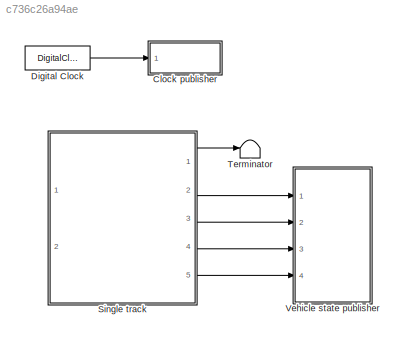
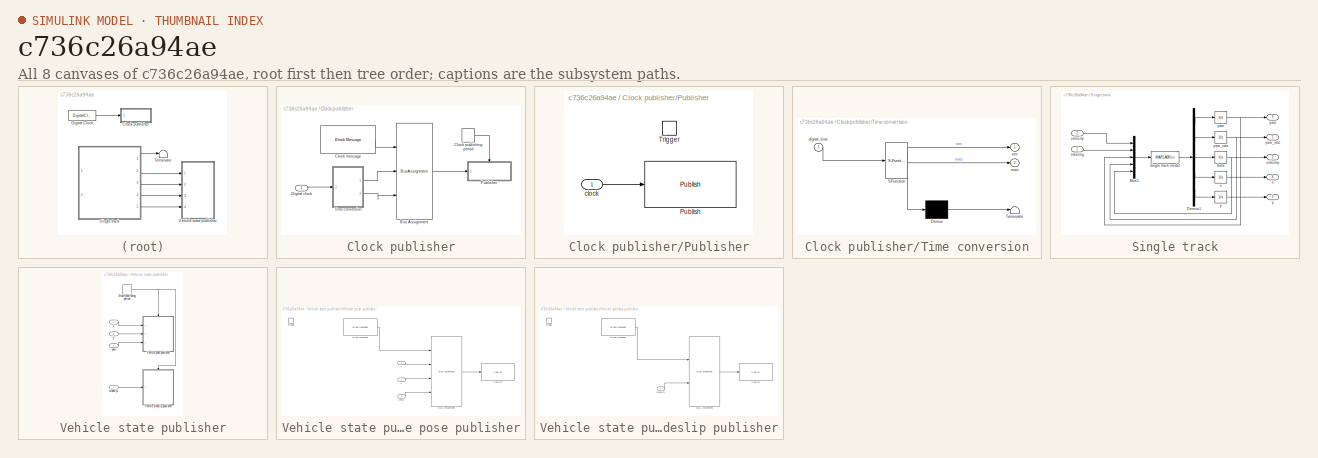
[diagram: thumbnail index - all 8 canvases of the model, root first then tree order]
MODEL slx_c736c26a94ae
KIND model
CONFIG AbsTol = auto
CONFIG EnableMultiTasking = off
CONFIG FixedStep = auto
CONFIG MaxStep = auto
CONFIG MinStep = auto
CONFIG RelTol = 1e-3
CONFIG SampleTimeConstraint = Unconstrained
CONFIG Solver = VariableStepAuto
CONFIG SolverName = VariableStepAuto
CONFIG StartTime = 0.0
CONFIG StopTime = 10.0
BLOCK [SubSystem] Clock publisher
  Ports = [1]
  RequestExecContextInheritance = off
  Variant = off
BLOCK [BusAssignment] Clock publisher/Bus Assignment
  AssignedSignals = Clock_.Sec,Clock_.Nsec
  DialogController = Simulink.DDGSource_BusAssignment
  Ports = [3, 1]
BLOCK [Reference] Clock publisher/Clock message  REF=robotlib/Blank Message
  Ports = [0, 1]
  SourceBlock = robotlib/Blank Message
  SourceLibraryInfo = This block requires Robotics System Toolbox
  SourceProductBaseCode = RO
  SourceProductName = Robotics System Toolbox
  SourceType = ROS Blank Message
BLOCK [DiscretePulseGenerator] Clock publisher/Clock publishing period
  Period = clock_publishing_period
  Ports = [0, 1]
  PulseType = Time based
  PulseWidth = 50
BLOCK [Inport] Clock publisher/Digital clock
  IconDisplay = Port number
BLOCK [SubSystem] Clock publisher/Publisher
  Ports = [1, 0, 0, 1]
  RequestExecContextInheritance = off
  TreatAsAtomicUnit = on
  Variant = off
BLOCK [Reference] Clock publisher/Publisher/Publish  REF=robotlib/Publish
  Ports = [1]
  SourceBlock = robotlib/Publish
  SourceLibraryInfo = This block requires Robotics System Toolbox
  SourceProductBaseCode = RO
  SourceProductName = Robotics System Toolbox
  SourceType = ROS Publish
BLOCK [TriggerPort] Clock publisher/Publisher/Trigger
  Ports = []
  StatesWhenEnabling = held
  VariantControl = Variant
BLOCK [Inport] Clock publisher/Publisher/clock
  IconDisplay = Port number
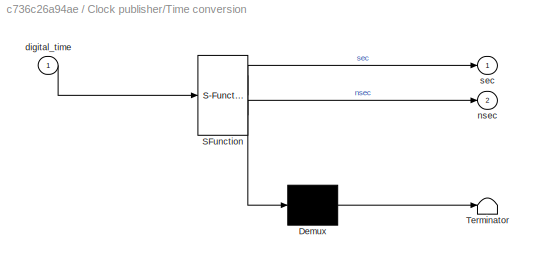
BLOCK [SubSystem] Clock publisher/Time conversion
  ErrorFcn = Stateflow.Translate.translate
  PermitHierarchicalResolution = ExplicitOnly
  Ports = [1, 2]
  RequestExecContextInheritance = off
  SFBlockType = MATLAB Function
  TreatAsAtomicUnit = on
  Variant = off
BLOCK [Demux] Clock publisher/Time conversion/ Demux 
  Outputs = 1
  Ports = [1, 1]
BLOCK [S-Function] Clock publisher/Time conversion/ SFunction 
  EnableBusSupport = on
  FunctionName = sf_sfun
  PortCounts = [1 3]
  Ports = [1, 3]
  SFcnIsStateOwnerBlock = off
  SFunctionDeploymentMode = off
  Tag = Stateflow S-Function single_track 2
BLOCK [Terminator] Clock publisher/Time conversion/ Terminator 
BLOCK [Inport] Clock publisher/Time conversion/digital_time
  IconDisplay = Port number
BLOCK [Outport] Clock publisher/Time conversion/nsec
  IconDisplay = Port number
  Port = 2
BLOCK [Outport] Clock publisher/Time conversion/sec
  IconDisplay = Port number
BLOCK [DigitalClock] Digital Clock
  SampleTime = SIM_Tsolver
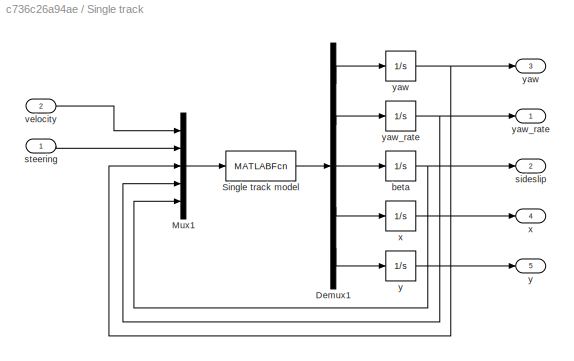
BLOCK [SubSystem] Single track
  Ports = [2, 5]
  RequestExecContextInheritance = off
  Variant = off
BLOCK [Demux] Single track/Demux1
  DisplayOption = bar
  Outputs = 5
  Ports = [1, 5]
BLOCK [Mux] Single track/Mux1
  DisplayOption = bar
  Inputs = 5
  Ports = [5, 1]
BLOCK [MATLABFcn] Single track/Single track model
  MATLABFcn = singleTrack_equation(u(3:5),u(1),u(2),param)
  OutputDimensions = 5
  Ports = [1, 1]
BLOCK [Integrator] Single track/beta 
  Ports = [1, 1]
BLOCK [Outport] Single track/sideslip
  IconDisplay = Port number
  Port = 2
BLOCK [Inport] Single track/steering
  IconDisplay = Port number
BLOCK [Inport] Single track/velocity
  IconDisplay = Port number
  Port = 2
BLOCK [Outport] Single track/x
  IconDisplay = Port number
  Port = 4
BLOCK [Integrator] Single track/x 
  Ports = [1, 1]
BLOCK [Outport] Single track/y
  IconDisplay = Port number
  Port = 5
BLOCK [Integrator] Single track/y 
  Ports = [1, 1]
BLOCK [Outport] Single track/yaw
  IconDisplay = Port number
  Port = 3
BLOCK [Integrator] Single track/yaw 
  Ports = [1, 1]
BLOCK [Outport] Single track/yaw_rate
  IconDisplay = Port number
BLOCK [Integrator] Single track/yaw_rate 
  Ports = [1, 1]
BLOCK [Terminator] Terminator
BLOCK [SubSystem] Vehicle state publisher
  Ports = [4]
  RequestExecContextInheritance = off
  Variant = off
BLOCK [DiscretePulseGenerator] Vehicle state publisher/State publishing period
  Period = measure_publishing_period
  Ports = [0, 1]
  PulseType = Time based
  PulseWidth = 50
BLOCK [SubSystem] Vehicle state publisher/Vehicle pose publisher
  Ports = [3, 0, 0, 1]
  RequestExecContextInheritance = off
  TreatAsAtomicUnit = on
  Variant = off
BLOCK [Reference] Vehicle state publisher/Vehicle pose publisher/Blank Message  REF=robotlib/Blank Message
  Ports = [0, 1]
  SourceBlock = robotlib/Blank Message
  SourceLibraryInfo = This block requires Robotics System Toolbox
  SourceProductBaseCode = RO
  SourceProductName = Robotics System Toolbox
  SourceType = ROS Blank Message
BLOCK [BusAssignment] Vehicle state publisher/Vehicle pose publisher/Bus Assignment
  AssignedSignals = X,Y,Theta
  DialogController = Simulink.DDGSource_BusAssignment
  Ports = [4, 1]
BLOCK [Reference] Vehicle state publisher/Vehicle pose publisher/Publish  REF=robotlib/Publish
  Ports = [1]
  SourceBlock = robotlib/Publish
  SourceLibraryInfo = This block requires Robotics System Toolbox
  SourceProductBaseCode = RO
  SourceProductName = Robotics System Toolbox
  SourceType = ROS Publish
BLOCK [TriggerPort] Vehicle state publisher/Vehicle pose publisher/Trigger
  Ports = []
  StatesWhenEnabling = held
  VariantControl = Variant
BLOCK [Inport] Vehicle state publisher/Vehicle pose publisher/theta
  IconDisplay = Port number
  Port = 3
BLOCK [Inport] Vehicle state publisher/Vehicle pose publisher/x
  IconDisplay = Port number
BLOCK [Inport] Vehicle state publisher/Vehicle pose publisher/y
  IconDisplay = Port number
  Port = 2
BLOCK [SubSystem] Vehicle state publisher/Vehicle sideslip publisher
  Ports = [1, 0, 0, 1]
  RequestExecContextInheritance = off
  TreatAsAtomicUnit = on
  Variant = off
BLOCK [Reference] Vehicle state publisher/Vehicle sideslip publisher/Blank Message  REF=robotlib/Blank Message
  Ports = [0, 1]
  SourceBlock = robotlib/Blank Message
  SourceLibraryInfo = This block requires Robotics System Toolbox
  SourceProductBaseCode = RO
  SourceProductName = Robotics System Toolbox
  SourceType = ROS Blank Message
BLOCK [BusAssignment] Vehicle state publisher/Vehicle sideslip publisher/Bus Assignment
  AssignedSignals = Data
  DialogController = Simulink.DDGSource_BusAssignment
  Ports = [2, 1]
BLOCK [Reference] Vehicle state publisher/Vehicle sideslip publisher/Publish  REF=robotlib/Publish
  Ports = [1]
  SourceBlock = robotlib/Publish
  SourceLibraryInfo = This block requires Robotics System Toolbox
  SourceProductBaseCode = RO
  SourceProductName = Robotics System Toolbox
  SourceType = ROS Publish
BLOCK [TriggerPort] Vehicle state publisher/Vehicle sideslip publisher/Trigger
  Ports = []
  StatesWhenEnabling = held
  VariantControl = Variant
BLOCK [Inport] Vehicle state publisher/Vehicle sideslip publisher/sideslip
  IconDisplay = Port number
BLOCK [Inport] Vehicle state publisher/sideslip
  IconDisplay = Port number
BLOCK [Inport] Vehicle state publisher/x
  IconDisplay = Port number
  Port = 3
BLOCK [Inport] Vehicle state publisher/y
  IconDisplay = Port number
  Port = 4
BLOCK [Inport] Vehicle state publisher/yaw
  IconDisplay = Port number
  Port = 2
LINE Clock publisher/Bus Assignment:1 -> Clock publisher/Publisher:1
LINE Clock publisher/Clock message:1 -> Clock publisher/Bus Assignment:1
LINE Clock publisher/Clock publishing period:1 -> Clock publisher/Publisher:trigger
LINE Clock publisher/Digital clock:1 -> Clock publisher/Time conversion:1
LINE Clock publisher/Publisher/clock:1 -> Clock publisher/Publisher/Publish:1
LINE Clock publisher/Time conversion:1 -> Clock publisher/Bus Assignment:2
LINE Clock publisher/Time conversion:2 -> Clock publisher/Bus Assignment:3
LINE Digital Clock:1 -> Clock publisher:1
LINE Single track/Demux1:1 -> Single track/yaw :1
LINE Single track/Demux1:2 -> Single track/yaw_rate :1
LINE Single track/Demux1:3 -> Single track/beta :1
LINE Single track/Demux1:4 -> Single track/x :1
LINE Single track/Demux1:5 -> Single track/y :1
LINE Single track/Mux1:1 -> Single track/Single track model:1
LINE Single track/Single track model:1 -> Single track/Demux1:1
NET Single track/beta :1 -> Single track/Mux1:5, Single track/sideslip:1
LINE Single track/steering:1 -> Single track/Mux1:2
LINE Single track/velocity:1 -> Single track/Mux1:1
LINE Single track/x :1 -> Single track/x:1
LINE Single track/y :1 -> Single track/y:1
NET Single track/yaw :1 -> Single track/Mux1:3, Single track/yaw:1
NET Single track/yaw_rate :1 -> Single track/Mux1:4, Single track/yaw_rate:1
LINE Single track:1 -> Terminator:1
LINE Single track:2 -> Vehicle state publisher:1
LINE Single track:3 -> Vehicle state publisher:2
LINE Single track:4 -> Vehicle state publisher:3
LINE Single track:5 -> Vehicle state publisher:4
NET Vehicle state publisher/State publishing period:1 -> Vehicle state publisher/Vehicle pose publisher:trigger, Vehicle state publisher/Vehicle sideslip publisher:trigger
LINE Vehicle state publisher/Vehicle pose publisher/Blank Message:1 -> Vehicle state publisher/Vehicle pose publisher/Bus Assignment:1
LINE Vehicle state publisher/Vehicle pose publisher/Bus Assignment:1 -> Vehicle state publisher/Vehicle pose publisher/Publish:1
LINE Vehicle state publisher/Vehicle pose publisher/theta:1 -> Vehicle state publisher/Vehicle pose publisher/Bus Assignment:4
LINE Vehicle state publisher/Vehicle pose publisher/x:1 -> Vehicle state publisher/Vehicle pose publisher/Bus Assignment:2
LINE Vehicle state publisher/Vehicle pose publisher/y:1 -> Vehicle state publisher/Vehicle pose publisher/Bus Assignment:3
LINE Vehicle state publisher/Vehicle sideslip publisher/Blank Message:1 -> Vehicle state publisher/Vehicle sideslip publisher/Bus Assignment:1
LINE Vehicle state publisher/Vehicle sideslip publisher/Bus Assignment:1 -> Vehicle state publisher/Vehicle sideslip publisher/Publish:1
LINE Vehicle state publisher/Vehicle sideslip publisher/sideslip:1 -> Vehicle state publisher/Vehicle sideslip publisher/Bus Assignment:2
LINE Vehicle state publisher/sideslip:1 -> Vehicle state publisher/Vehicle sideslip publisher:1
LINE Vehicle state publisher/x:1 -> Vehicle state publisher/Vehicle pose publisher:1
LINE Vehicle state publisher/y:1 -> Vehicle state publisher/Vehicle pose publisher:2
LINE Vehicle state publisher/yaw:1 -> Vehicle state publisher/Vehicle pose publisher:3
note: NET lines group one-source signal fan-out (src -> all destinations, sorted); 1:1 wires keep LINE
CHART Clock publisher/Time conversion states=1 transitions=1
  STATE_LABEL 'eML_blk_kernel()'
  STATE_LABEL 'SCRIPT:\nfunction [sec,nsec] = time2rosclock(digital_time)\n\nsec = floor(digital_time);\nnsec = round((digital_time-sec)*1.0e+9);\n\n'
